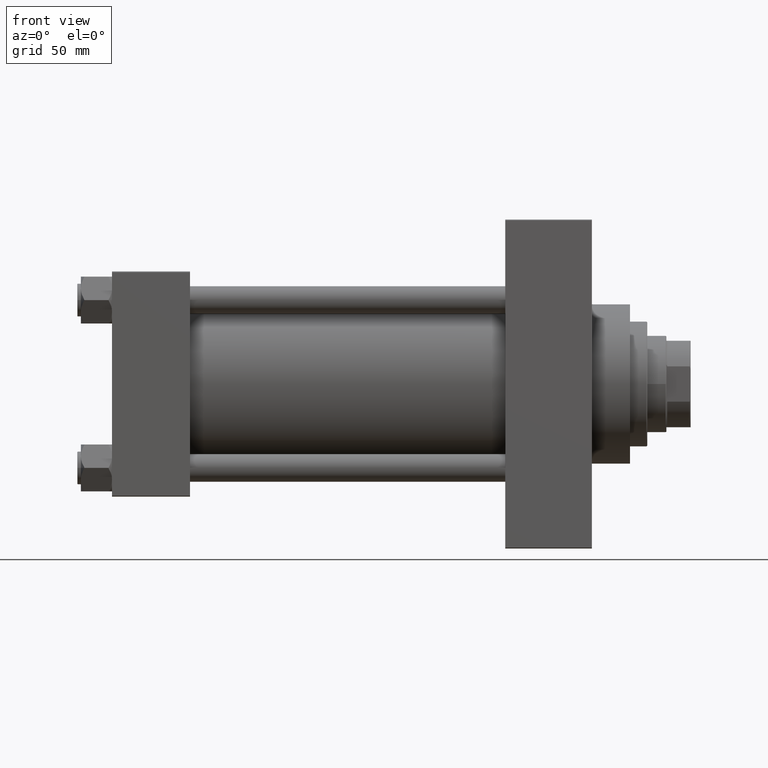
[diagram: clean part render]
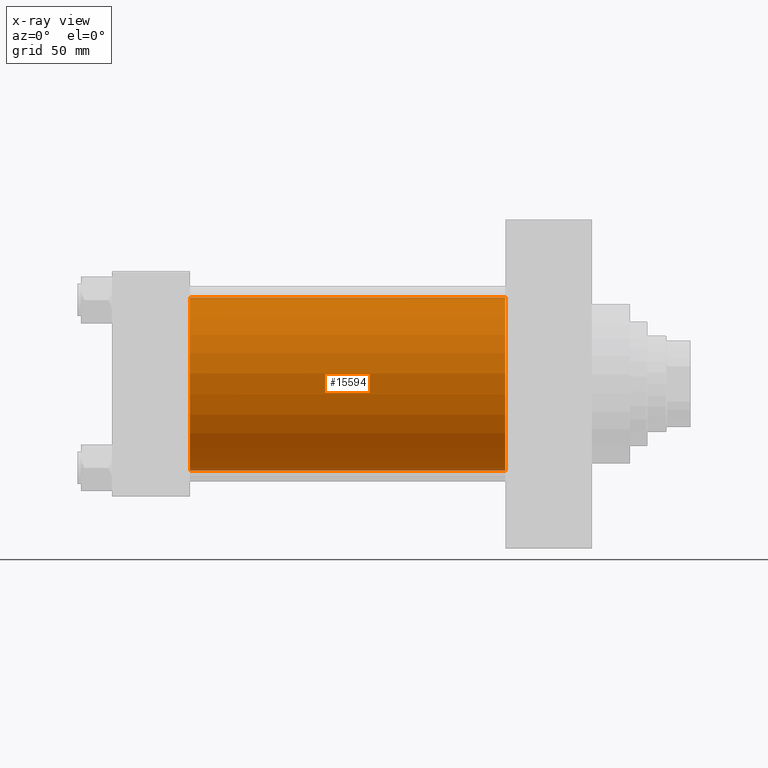
[diagram: x-ray — body ghosted, one internal face saturated and labeled with its STEP entity id]
A machine part, front view, then the same camera in x-ray: the body is ghosted and one INTERNAL B-rep face — a face not visible from any outside direction — is saturated and labeled: STEP entity #15594.
In plain terms, the highlighted cylindrical surface (partial cylindrical patch) has radius 50 mm, axis along (-1, -0, -0).
Its self-contained STEP definition (entity closure, byte-faithful):
#858 = AXIS2_PLACEMENT_3D ( 'NONE', #41222, #8151, #26022 ) ;
#1591 = EDGE_CURVE ( 'NONE', #21384, #38817, #41731, .T. ) ;
#4101 = CARTESIAN_POINT ( 'NONE',  ( 45.00000000000000000, -2.602085213965210642E-15, 50.00000000000000000 ) ) ;
#4121 = DIRECTION ( 'NONE',  ( 0.000000000000000000, 0.000000000000000000, 1.000000000000000000 ) ) ;
#5518 = DIRECTION ( 'NONE',  ( 0.000000000000000000, 0.000000000000000000, -1.000000000000000000 ) ) ;
#8151 = DIRECTION ( 'NONE',  ( 1.000000000000000000, 0.000000000000000000, 0.000000000000000000 ) ) ;
#8424 = DIRECTION ( 'NONE',  ( -1.000000000000000000, -0.000000000000000000, -0.000000000000000000 ) ) ;
#10543 = CARTESIAN_POINT ( 'NONE',  ( 226.9999999999999716, 3.521148781771555838E-15, -50.00000000000000000 ) ) ;
#11675 = CARTESIAN_POINT ( 'NONE',  ( 45.00000000000000000, 3.521148781771555838E-15, -50.00000000000000000 ) ) ;
#11858 = ORIENTED_EDGE ( 'NONE', *, *, #22518, .T. ) ;
#12703 = VERTEX_POINT ( 'NONE', #11675 ) ;
#12772 = LINE ( 'NONE', #16143, #46163 ) ;
#13968 = VECTOR ( 'NONE', #25120, 1000.000000000000000 ) ;
#14282 = EDGE_CURVE ( 'NONE', #21384, #47017, #12772, .T. ) ;
#15206 = LINE ( 'NONE', #37168, #13968 ) ;
#15594 = ADVANCED_FACE ( 'NONE', ( #22449 ), #37174, .F. ) ;
#16143 = CARTESIAN_POINT ( 'NONE',  ( 226.9999999999999716, -2.602085213965210642E-15, 50.00000000000000000 ) ) ;
#17765 = ORIENTED_EDGE ( 'NONE', *, *, #1591, .T. ) ;
#19109 = CARTESIAN_POINT ( 'NONE',  ( 226.9999999999999716, -2.602085213965210642E-15, 50.00000000000000000 ) ) ;
#20938 = EDGE_LOOP ( 'NONE', ( #17765, #11858, #36129, #36359 ) ) ;
#21384 = VERTEX_POINT ( 'NONE', #19109 ) ;
#21522 = AXIS2_PLACEMENT_3D ( 'NONE', #41026, #8424, #4121 ) ;
#22449 = FACE_OUTER_BOUND ( 'NONE', #20938, .T. ) ;
#22518 = EDGE_CURVE ( 'NONE', #38817, #12703, #15206, .T. ) ;
#23857 = CARTESIAN_POINT ( 'NONE',  ( 45.00000000000000000, -2.602085213965210642E-15, 0.000000000000000000 ) ) ;
#25120 = DIRECTION ( 'NONE',  ( -1.000000000000000000, -0.000000000000000000, -0.000000000000000000 ) ) ;
#26022 = DIRECTION ( 'NONE',  ( 0.000000000000000000, 0.000000000000000000, -1.000000000000000000 ) ) ;
#30872 = DIRECTION ( 'NONE',  ( -1.000000000000000000, -0.000000000000000000, -0.000000000000000000 ) ) ;
#31109 = DIRECTION ( 'NONE',  ( 1.000000000000000000, 0.000000000000000000, 0.000000000000000000 ) ) ;
#36129 = ORIENTED_EDGE ( 'NONE', *, *, #40578, .F. ) ;
#36359 = ORIENTED_EDGE ( 'NONE', *, *, #14282, .F. ) ;
#37168 = CARTESIAN_POINT ( 'NONE',  ( 226.9999999999999716, 3.521148781771555838E-15, -50.00000000000000000 ) ) ;
#37174 = CYLINDRICAL_SURFACE ( 'NONE', #21522, 50.00000000000000000 ) ;
#38025 = CIRCLE ( 'NONE', #45718, 50.00000000000000000 ) ;
#38817 = VERTEX_POINT ( 'NONE', #10543 ) ;
#40578 = EDGE_CURVE ( 'NONE', #47017, #12703, #38025, .T. ) ;
#41026 = CARTESIAN_POINT ( 'NONE',  ( 226.9999999999999716, -2.602085213965210642E-15, 0.000000000000000000 ) ) ;
#41222 = CARTESIAN_POINT ( 'NONE',  ( 226.9999999999999716, -2.602085213965210642E-15, 0.000000000000000000 ) ) ;
#41731 = CIRCLE ( 'NONE', #858, 50.00000000000000000 ) ;
#45718 = AXIS2_PLACEMENT_3D ( 'NONE', #23857, #31109, #5518 ) ;
#46163 = VECTOR ( 'NONE', #30872, 1000.000000000000000 ) ;
#47017 = VERTEX_POINT ( 'NONE', #4101 ) ;